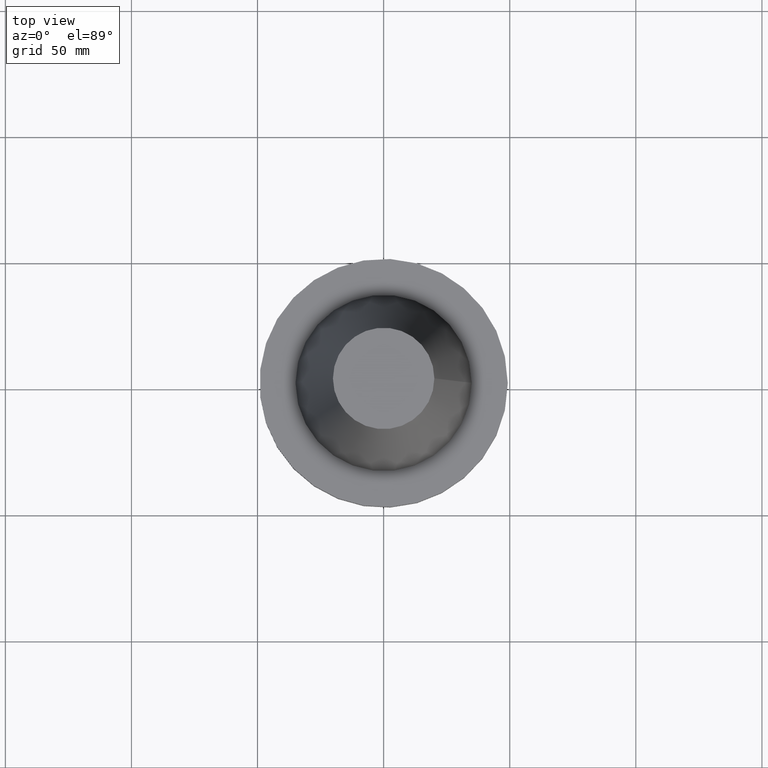
[diagram: clean part render]
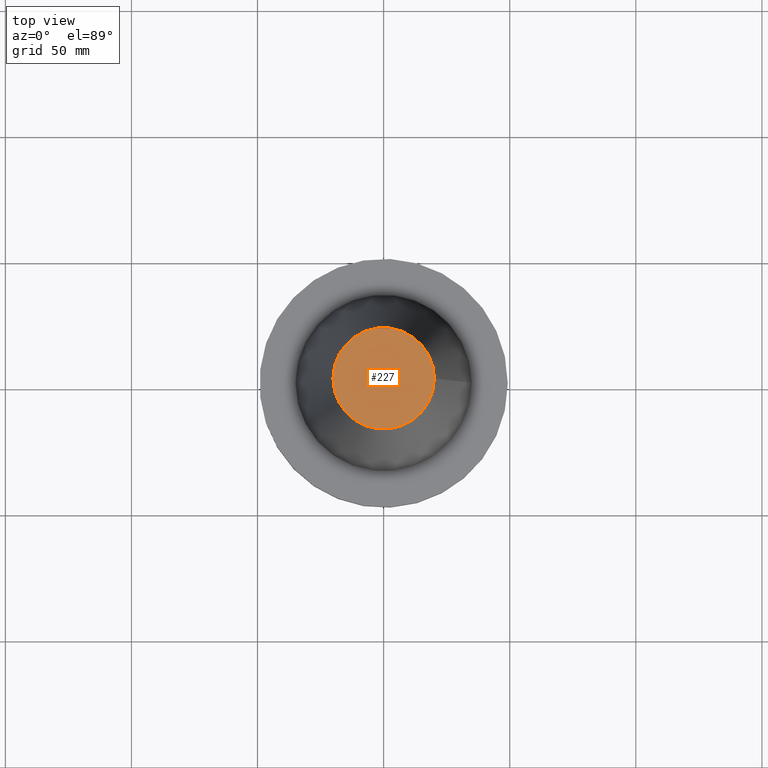
[diagram: same view with one face highlighted and labeled with its STEP entity id]
A machine part, top view. The second image highlights one B-rep face of the part: STEP entity #227.
In plain terms, the highlighted planar face has unit normal (0, 0, -1).
Its self-contained STEP definition (entity closure, byte-faithful):
#55 = DIRECTION ( 'NONE',  ( -1.000000000000000000, 0.000000000000000000, -0.000000000000000000 ) ) ;
#102 = VERTEX_POINT ( 'NONE', #229 ) ;
#149 = FACE_OUTER_BOUND ( 'NONE', #371, .T. ) ;
#169 = AXIS2_PLACEMENT_3D ( 'NONE', #363, #338, #55 ) ;
#181 = EDGE_CURVE ( 'NONE', #102, #102, #351, .T. ) ;
#227 = ADVANCED_FACE ( 'NONE', ( #149 ), #275, .F. ) ;
#229 = CARTESIAN_POINT ( 'NONE',  ( 20.10819343178871321, 0.000000000000000000, 101.5999999999999801 ) ) ;
#272 = DIRECTION ( 'NONE',  ( -0.000000000000000000, -0.000000000000000000, 1.000000000000000000 ) ) ;
#275 = PLANE ( 'NONE',  #169 ) ;
#293 = AXIS2_PLACEMENT_3D ( 'NONE', #303, #272, #391 ) ;
#303 = CARTESIAN_POINT ( 'NONE',  ( 0.000000000000000000, 0.000000000000000000, 101.5999999999999801 ) ) ;
#338 = DIRECTION ( 'NONE',  ( 0.000000000000000000, 0.000000000000000000, -1.000000000000000000 ) ) ;
#344 = ORIENTED_EDGE ( 'NONE', *, *, #181, .T. ) ;
#351 = CIRCLE ( 'NONE', #293, 20.10819343178871321 ) ;
#363 = CARTESIAN_POINT ( 'NONE',  ( 0.000000000000000000, 20.10819343178871321, 101.5999999999999943 ) ) ;
#371 = EDGE_LOOP ( 'NONE', ( #344 ) ) ;
#391 = DIRECTION ( 'NONE',  ( 1.000000000000000000, 0.000000000000000000, 0.000000000000000000 ) ) ;